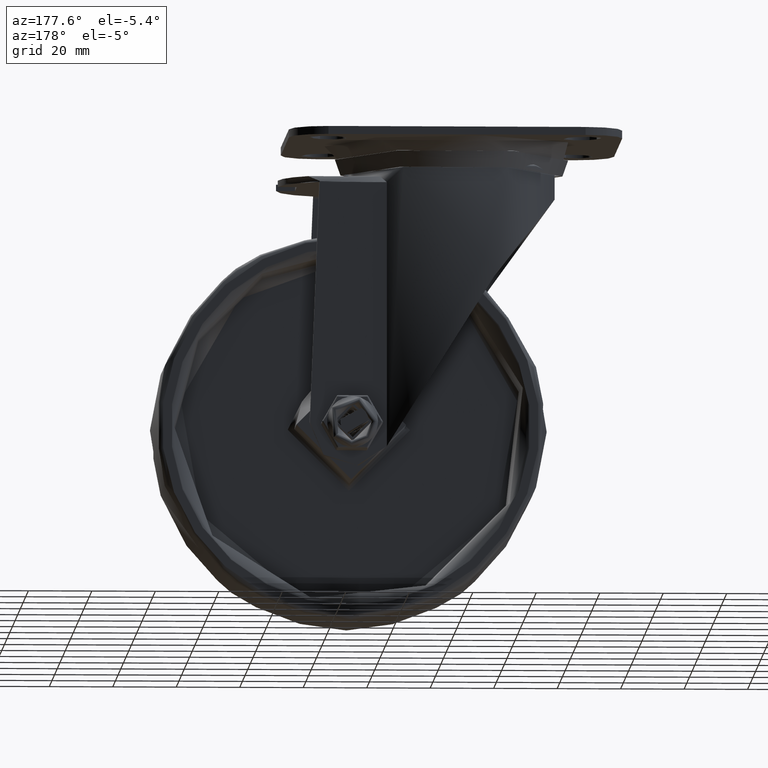
[diagram: clean part render]
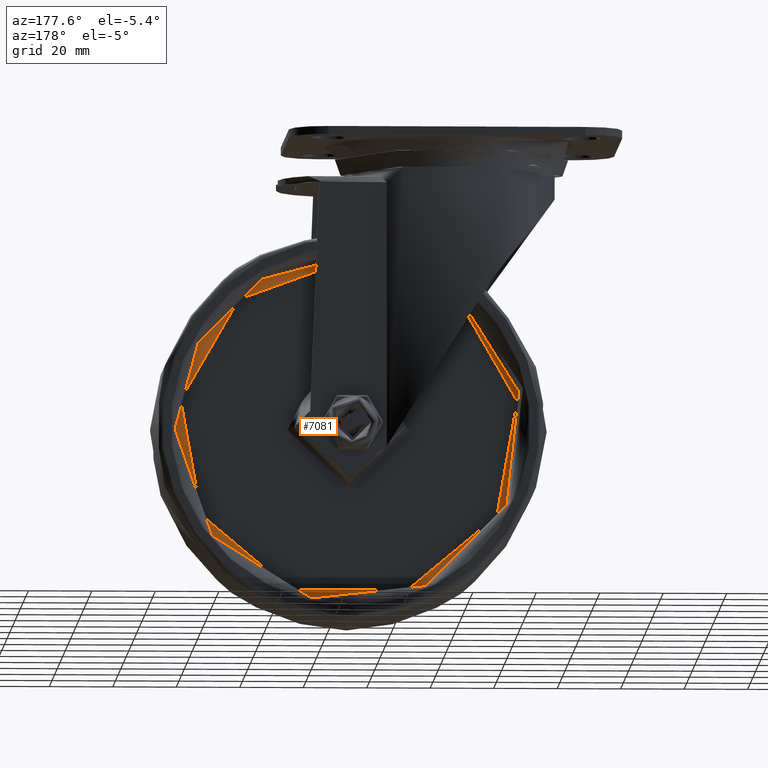
[diagram: same view with one face highlighted and labeled with its STEP entity id]
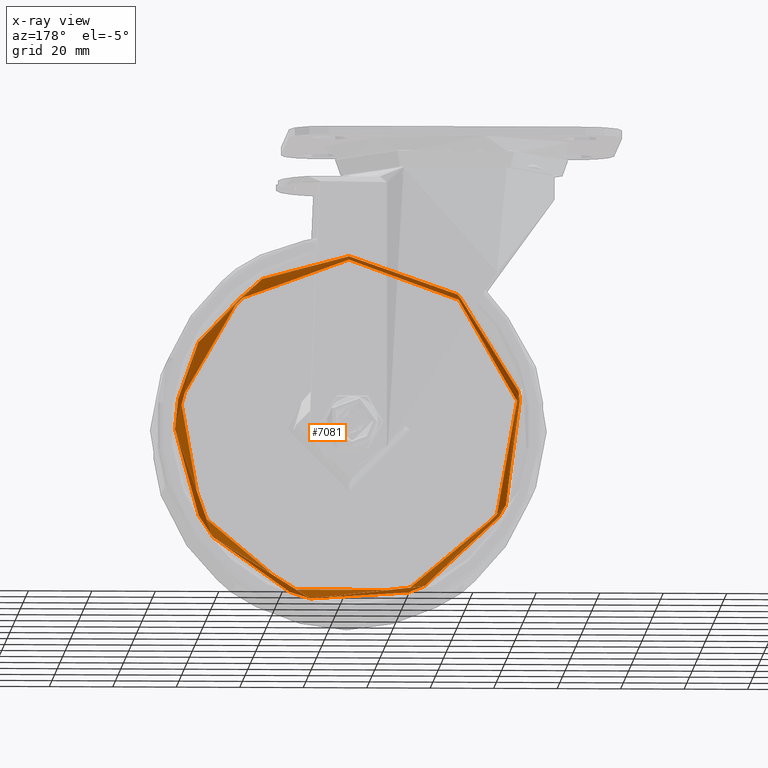
[diagram: x-ray of the same camera — body ghosted, the highlighted face saturated]
A machine part, auxiliary view. The second image highlights one B-rep face of the part: STEP entity #7081.
The next image is the same camera in x-ray: the body ghosted, the highlighted face saturated — about 0% of this face is hidden behind the body in this view.
In plain terms, the highlighted toroidal blend (fillet) surface has major radius 53.824 mm and minor (blend) radius 1 mm.
Its self-contained STEP definition (entity closure, byte-faithful):
#716=TOROIDAL_SURFACE('',#7749,53.8239688607381,0.999999999999999);
#845=FACE_OUTER_BOUND('',#1292,.T.);
#1292=EDGE_LOOP('',(#5339,#5340,#5341,#5342,#5343));
#2814=CIRCLE('',#7750,53.8239688607381);
#2815=CIRCLE('',#7751,0.999999999999999);
#2816=CIRCLE('',#7752,54.8210233462396);
#2817=CIRCLE('',#7753,54.8210233462396);
#3209=VERTEX_POINT('',#11965);
#3210=VERTEX_POINT('',#11967);
#3211=VERTEX_POINT('',#11969);
#3982=EDGE_CURVE('',#3209,#3209,#2814,.T.);
#3983=EDGE_CURVE('',#3209,#3210,#2815,.T.);
#3984=EDGE_CURVE('',#3210,#3211,#2816,.T.);
#3985=EDGE_CURVE('',#3211,#3210,#2817,.T.);
#5339=ORIENTED_EDGE('',*,*,#3982,.F.);
#5340=ORIENTED_EDGE('',*,*,#3983,.T.);
#5341=ORIENTED_EDGE('',*,*,#3984,.T.);
#5342=ORIENTED_EDGE('',*,*,#3985,.T.);
#5343=ORIENTED_EDGE('',*,*,#3983,.F.);
#7081=ADVANCED_FACE('',(#845),#716,.F.);
#7749=AXIS2_PLACEMENT_3D('',#11964,#8869,#8870);
#7750=AXIS2_PLACEMENT_3D('',#11966,#8871,#8872);
#7751=AXIS2_PLACEMENT_3D('',#11968,#8873,#8874);
#7752=AXIS2_PLACEMENT_3D('',#11970,#8875,#8876);
#7753=AXIS2_PLACEMENT_3D('',#11971,#8877,#8878);
#8869=DIRECTION('center_axis',(-3.26943875618435E-15,1.,0.));
#8870=DIRECTION('ref_axis',(0.,0.,-1.));
#8871=DIRECTION('center_axis',(-3.26943875618435E-15,1.,0.));
#8872=DIRECTION('ref_axis',(-1.,-3.26943875618435E-15,0.));
#8873=DIRECTION('center_axis',(-1.,-3.26943875618435E-15,1.22464679914735E-16));
#8874=DIRECTION('ref_axis',(1.22464679914735E-16,0.,1.));
#8875=DIRECTION('center_axis',(-3.26943875618435E-15,1.,0.));
#8876=DIRECTION('ref_axis',(-1.,-3.26943875618435E-15,0.));
#8877=DIRECTION('center_axis',(-3.26943875618435E-15,1.,0.));
#8878=DIRECTION('ref_axis',(-1.,-3.26943875618435E-15,0.));
#11964=CARTESIAN_POINT('Origin',(-1.79819131590138E-14,5.49999999999998,
0.));
#11965=CARTESIAN_POINT('',(-8.12093928455848E-15,4.49999999999998,53.8239688607381));
#11966=CARTESIAN_POINT('Origin',(-1.47124744028295E-14,4.49999999999998,
0.));
#11967=CARTESIAN_POINT('',(-1.10175195764009E-14,5.42330350111524,54.8210233462396));
#11968=CARTESIAN_POINT('Origin',(-1.13903780407428E-14,5.49999999999998,
53.8239688607381));
#11969=CARTESIAN_POINT('',(54.8210233462396,5.42330350111542,6.71363907669547E-15));
#11970=CARTESIAN_POINT('Origin',(-1.77311586530964E-14,5.42330350111524,
0.));
#11971=CARTESIAN_POINT('Origin',(-1.77311586530964E-14,5.42330350111524,
0.));